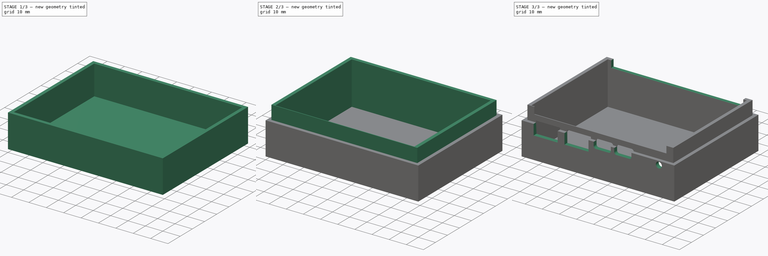
[diagram: build sequence overview — one tinted view per stage of 3, left to right]
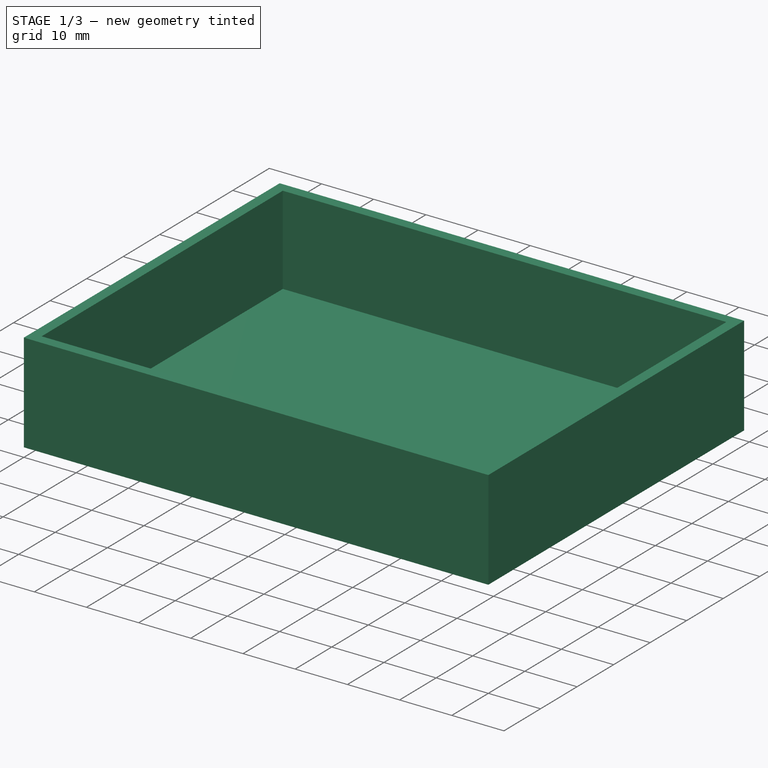
[diagram: stage 1 of 3 — iso view after this stage's code; geometry added in this stage tinted green]
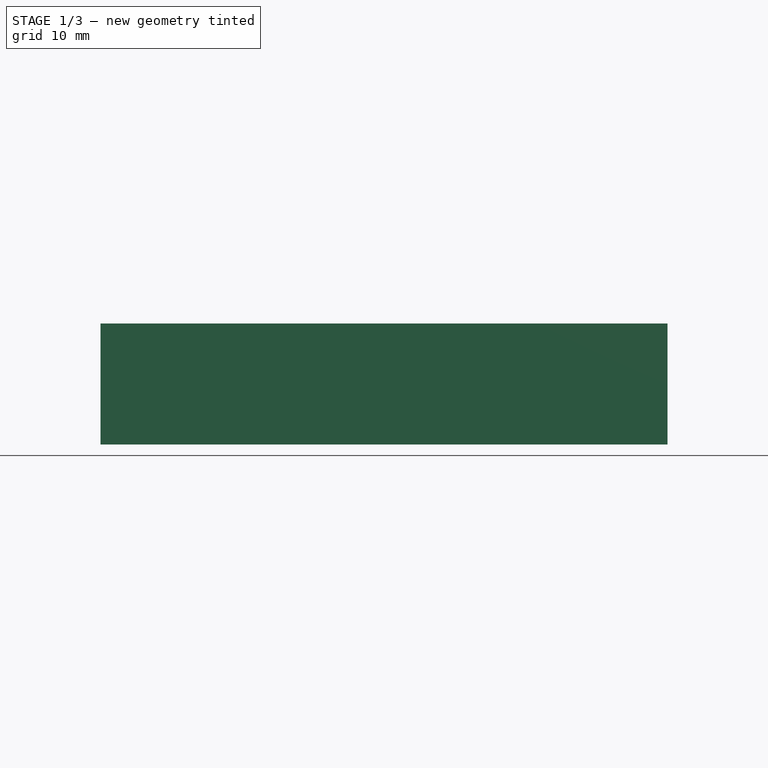
[diagram: stage 1 of 3 — front view after this stage's code; geometry added in this stage tinted green]
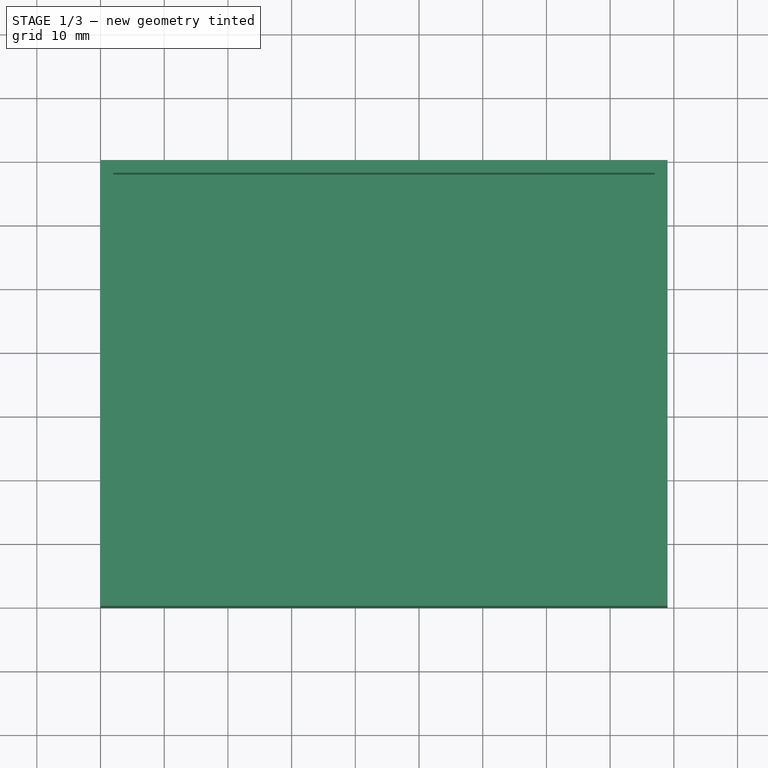
[diagram: stage 1 of 3 — top view after this stage's code; geometry added in this stage tinted green]
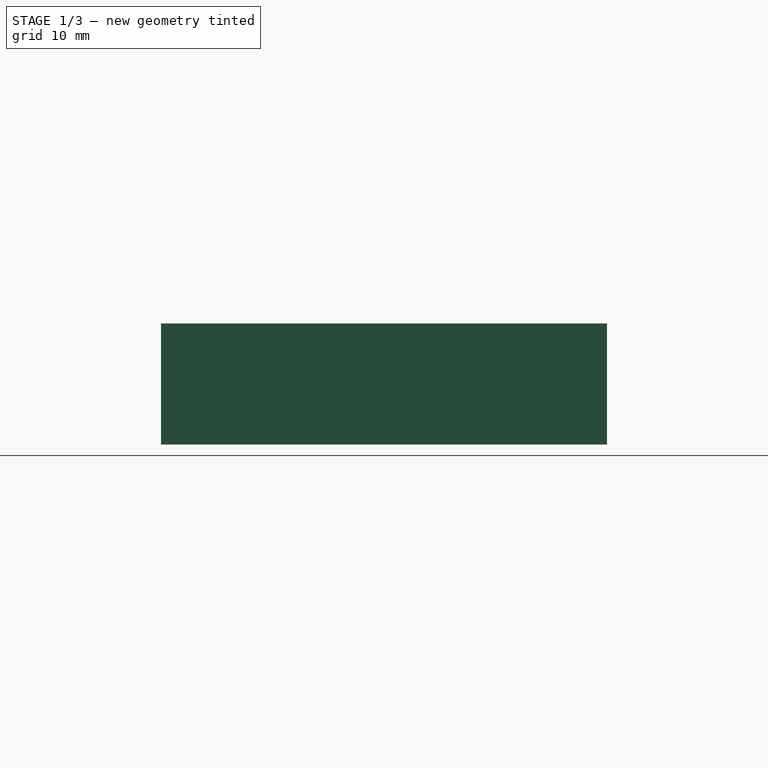
[diagram: stage 1 of 3 — right view after this stage's code; geometry added in this stage tinted green]
FCSTD DOCUMENT  (FreeCAD 1.0RUnknown)
Label: MYZL-YD24-2.3
License: All rights reserved
LicenseURL: https://en.wikipedia.org/wiki/All_rights_reserved
objects: Sketcher::SketchObject×5, PartDesign::Pad×3, PartDesign::Pocket×3, App::VarSet×1, PartDesign::Body×1
note: 29 computed .brp shape members not serialized (recipe doc carries the construction recipe); baked Part::Feature solids carry a one-line shape summary decoded from their .brp

FEATURE [App::VarSet] VarSet
  case_thk = 2
  dist_case_pcb = 4
  extra_height = 5
  height = 19
  inner_height = 8
  length = 85
  thk = 2
  width = 66
  expr: height = 14 mm + extra_height
FEATURE [Sketcher::SketchObject] Sketch
  ArcFitTolerance = 1e-06
  AttachmentSupport = -> [XY_Plane]
  FullyConstrained = true
  MakeInternals = false
  MapMode = 5
  expr: Constraints[8] = <<VarSet>>.length + <<VarSet>>.case_thk * 2
  expr: Constraints[9] = <<VarSet>>.width + <<VarSet>>.case_thk * 2
  sketch-geometry (4):
    g0: LineSegment StartX=0 StartY=0 StartZ=0 EndX=89 EndY=0 EndZ=0
    g1: LineSegment StartX=89 StartY=0 StartZ=0 EndX=89 EndY=70 EndZ=0
    g2: LineSegment StartX=89 StartY=70 StartZ=0 EndX=0 EndY=70 EndZ=0
    g3: LineSegment StartX=0 StartY=70 StartZ=0 EndX=0 EndY=0 EndZ=0
  constraints (12):
    c: Coincident(g0,g1)
    c: Coincident(g1,g2)
    c: Coincident(g2,g3)
    c: Coincident(g3,g0)
    c: Horizontal(g2)
    c: Vertical(g1)
    c: Vertical(g3)
    c: PointOnObject(g0,g-1)
    c: DistanceX(g2,g2) = 89
    c: DistanceY(g3,g3) = 70
    c: PointOnObject(g0,g-2)
    c: Horizontal(g0)
FEATURE [PartDesign::Pad] Pad
  Direction = (0,0,1)
  Length = 2
  Length2 = 10
  Profile = -> Sketch
  ReferenceAxis = -> Sketch [N_Axis]
  Refine = true
  Suppressed = false
  Type = 0
  expr: Length = <<VarSet>>.thk
FEATURE [Sketcher::SketchObject] Sketch001
  ArcFitTolerance = 1e-06
  AttachmentSupport = -> [XY_Plane]
  FullyConstrained = true
  MakeInternals = false
  MapMode = 5
  expr: Constraints[28] = VarSet.case_thk
  expr: Constraints[29] = VarSet.width + 2 * VarSet.case_thk
  expr: Constraints[30] = VarSet.length + 2 * VarSet.case_thk
  expr: Constraints[36] = VarSet.thk
  expr: Constraints[37] = VarSet.thk
  expr: Constraints[38] = VarSet.thk
  expr: Constraints[43] = (VarSet.length + 2 * VarSet.case_thk) / 2
  sketch-geometry (18):
    g0: LineSegment StartX=2 StartY=2 StartZ=0 EndX=87 EndY=2 EndZ=0
    g1: LineSegment StartX=87 StartY=2 StartZ=0 EndX=87 EndY=68 EndZ=0
    g2: LineSegment StartX=87 StartY=68 StartZ=0 EndX=2 EndY=68 EndZ=0
    g3: LineSegment StartX=2 StartY=68 StartZ=0 EndX=2 EndY=2 EndZ=0
    g4: LineSegment StartX=2e-16 StartY=0 StartZ=0 EndX=89 EndY=0 EndZ=0
    g5: LineSegment StartX=89 StartY=0 StartZ=0 EndX=89 EndY=70 EndZ=0
    g6: LineSegment StartX=89 StartY=70 StartZ=0 EndX=0 EndY=70 EndZ=0
    g7: LineSegment StartX=2e-16 StartY=70 StartZ=0 EndX=2e-16 EndY=0 EndZ=0
    g8: LineSegment [constr] StartX=2 StartY=2 StartZ=0 EndX=2e-16 EndY=0 EndZ=0
    g9: LineSegment [constr] StartX=87 StartY=2 StartZ=0 EndX=89 EndY=0 EndZ=0
    g10: LineSegment [constr] StartX=87 StartY=68 StartZ=0 EndX=89 EndY=70 EndZ=0
    g11: LineSegment [constr] StartX=2 StartY=68 StartZ=0 EndX=2e-16 EndY=70 EndZ=0
    g12: LineSegment StartX=4 StartY=66 StartZ=0 EndX=4 EndY=2.4 EndZ=0
    g13: LineSegment StartX=85 StartY=2.4 StartZ=0 EndX=85 EndY=66 EndZ=0
    g14: LineSegment StartX=85 StartY=66 StartZ=0 EndX=4 EndY=66 EndZ=0
    g15: LineSegment StartX=4 StartY=2.4 StartZ=0 EndX=85 EndY=2.4 EndZ=0
    g16: GeomPoint X=44.5 Y=0 Z=0
    g17: GeomPoint X=44.5 Y=0 Z=0
  constraints (46):
    c: Coincident(g0,g1)
    c: Coincident(g1,g2)
    c: Coincident(g2,g3)
    c: Coincident(g3,g0)
    c: Horizontal(g0)
    c: Horizontal(g2)
    c: Vertical(g1)
    c: Vertical(g3)
    c: Coincident(g4,g5)
    c: Coincident(g5,g6)
    c: Coincident(g6,g7)
    c: Coincident(g7,g4)
    c: Horizontal(g4)
    c: Horizontal(g6)
    c: Vertical(g5)
    c: Vertical(g7)
    c: Coincident(g8,g0)
    c: Coincident(g8,g4)
    c: Coincident(g9,g1)
    c: Coincident(g9,g5)
    c: Coincident(g10,g2)
    c: Coincident(g10,g6)
    c: Coincident(g11,g3)
    c: Coincident(g11,g7)
    c: Perpendicular(g8,g9)
    c: Perpendicular(g9,g10)
    c: Perpendicular(g10,g11)
    c: Coincident(g-1,g4)
    c: Distance(g4,g0) = 2
    c: DistanceY(g7,g7) = 70
    c: DistanceX(g6,g6) = 89
    c: Coincident(g13,g14)
    c: Coincident(g14,g12)
    c: Vertical(g12)
    c: Vertical(g13)
    c: Horizontal(g14)
    c: Distance(g2,g14) = 2
    c: Distance(g1,g13) = 2
    c: DistanceX(g2,g12) = 2
    c: Horizontal(g15)
    c: DistanceY(g0,g15) = 0.4
    c: Symmetric(g4,g4,g16)
    c: PointOnObject(g17,g4)
    c: DistanceX(g4,g17) = 44.5
    c: Coincident(g15,g13)
    c: Coincident(g15,g12)
FEATURE [PartDesign::Pad] Pad001
  BaseFeature = -> Pad
  Direction = (0,0,1)
  Length = 19
  Length2 = 10
  Profile = -> Sketch001 [Edge7,Edge6,Edge3,Edge2,Edge1,Edge5,Edge4,Edge8]
  ReferenceAxis = -> Sketch001 [N_Axis]
  Refine = true
  Suppressed = false
  Type = 0
  expr: Length = VarSet.height
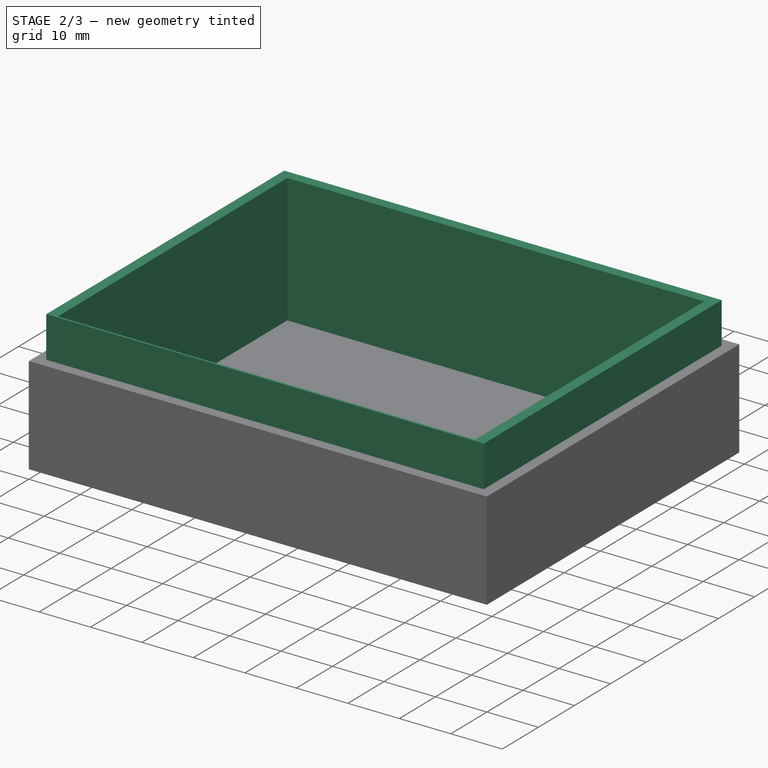
[diagram: stage 2 of 3 — iso view after this stage's code; geometry added in this stage tinted green]
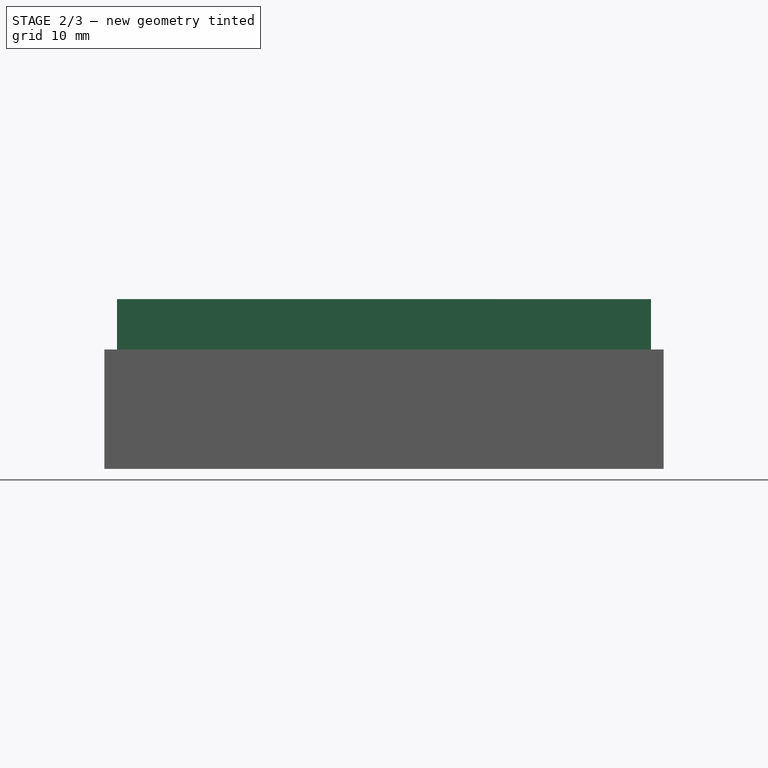
[diagram: stage 2 of 3 — front view after this stage's code; geometry added in this stage tinted green]
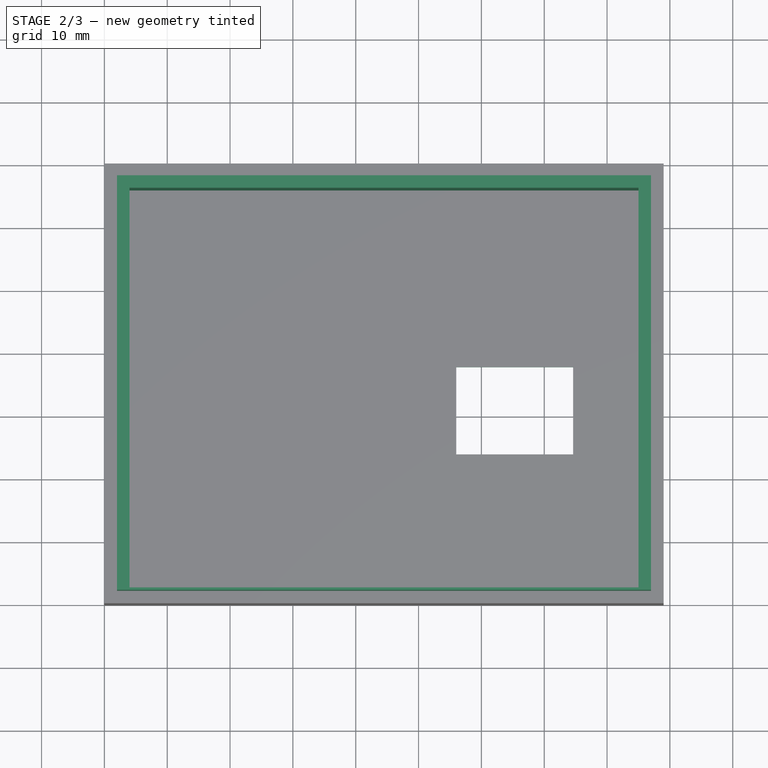
[diagram: stage 2 of 3 — top view after this stage's code; geometry added in this stage tinted green]
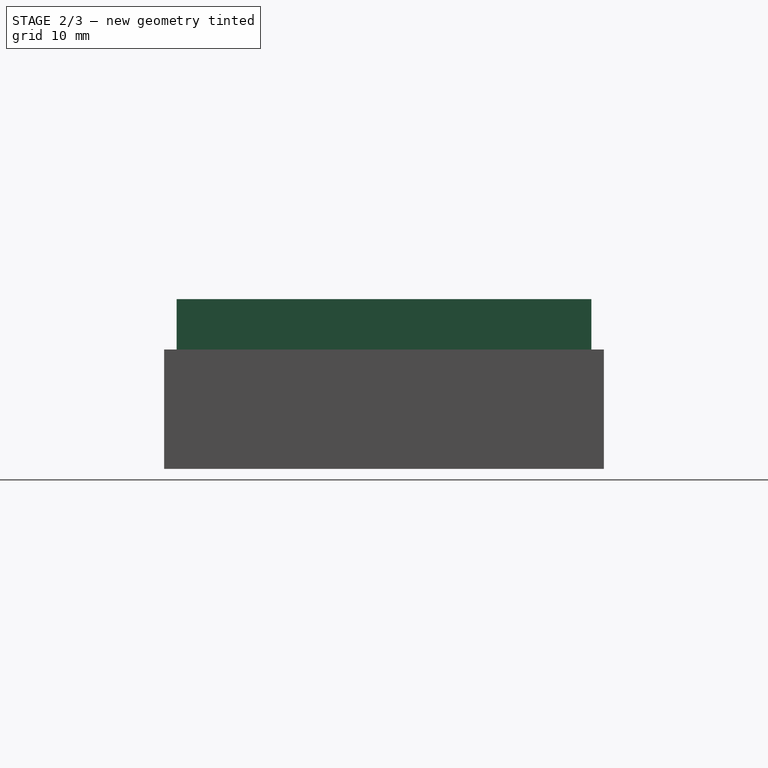
[diagram: stage 2 of 3 — right view after this stage's code; geometry added in this stage tinted green]
FEATURE [PartDesign::Pad] Pad002
  BaseFeature = -> Pad001
  Direction = (0,0,1)
  Length = 27
  Length2 = 10
  Profile = -> Sketch001 [Edge4,Edge1,Edge9,Edge2,Edge11,Edge3,Edge12,Edge10]
  ReferenceAxis = -> Sketch001 [N_Axis]
  Refine = true
  Suppressed = false
  Type = 0
  expr: Length = VarSet.height + VarSet.inner_height
FEATURE [Sketcher::SketchObject] Sketch002
  ArcFitTolerance = 1e-06
  AttachmentSupport = -> [XY_Plane]
  ExternalGeometry = -> [Sketch001,Pad002]
  FullyConstrained = true
  MakeInternals = false
  MapMode = 5
  expr: Constraints[10] = VarSet.case_thk + VarSet.thk + 20 mm
  expr: Constraints[17] = VarSet.dist_case_pcb
  sketch-geometry (5):
    g0: LineSegment StartX=56 StartY=37.9 StartZ=0 EndX=56 EndY=24 EndZ=0
    g1: LineSegment StartX=56 StartY=24 StartZ=0 EndX=74.6 EndY=24 EndZ=0
    g2: LineSegment StartX=74.6 StartY=24 StartZ=0 EndX=74.6 EndY=37.9 EndZ=0
    g3: LineSegment StartX=74.6 StartY=37.9 StartZ=0 EndX=56 EndY=37.9 EndZ=0
    g4: GeomPoint X=-4 Y=0 Z=0
  constraints (19):
    c: Coincident(g0,g1)
    c: Coincident(g1,g2)
    c: Coincident(g2,g3)
    c: Coincident(g3,g0)
    c: Vertical(g0)
    c: Vertical(g2)
    c: Horizontal(g1)
    c: Horizontal(g3)
    c: Distance(g0,g0) = 13.9
    c: DistanceX(g3,g3) = 18.6
    c: Distance(g0,g-1) = 24
    c: DistanceX(g1,g-3) = 12.4
    c: DistanceX(g1,g-4) = 10.4
    c: DistanceX(g-5,g-4) = 81
    c: DistanceX(g-6,g-3) = 85
    c: DistanceX(g-1,g-9) = 89
    c: PointOnObject(g4,g-8)
    c: Distance(g4,g-1) = 4
    c: DistanceX(g4,g0) = 60
FEATURE [PartDesign::Pocket] Pocket
  BaseFeature = -> Pad002
  Direction = (0,0,-1)
  Length = 5
  Length2 = 5
  Profile = -> Sketch002
  ReferenceAxis = -> Sketch002 [N_Axis]
  Refine = true
  Reversed = true
  Suppressed = false
  Type = 1
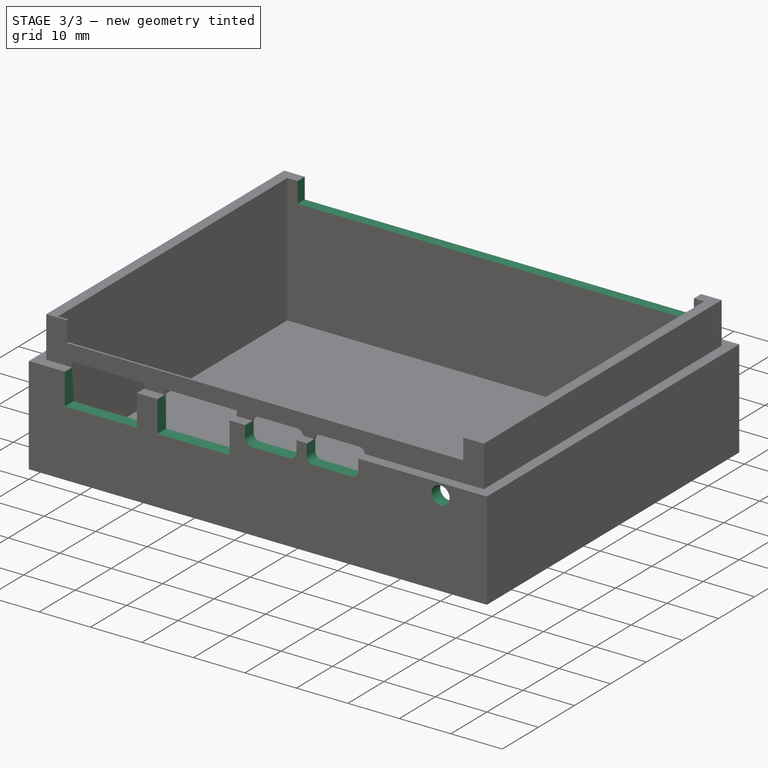
[diagram: stage 3 of 3 — iso view after this stage's code; geometry added in this stage tinted green]
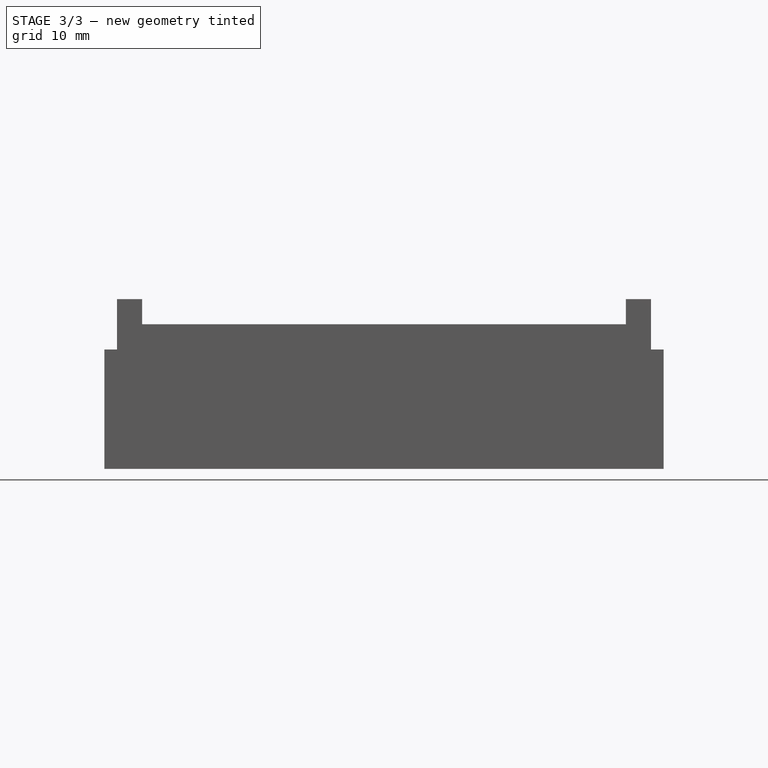
[diagram: stage 3 of 3 — front view after this stage's code; geometry added in this stage tinted green]
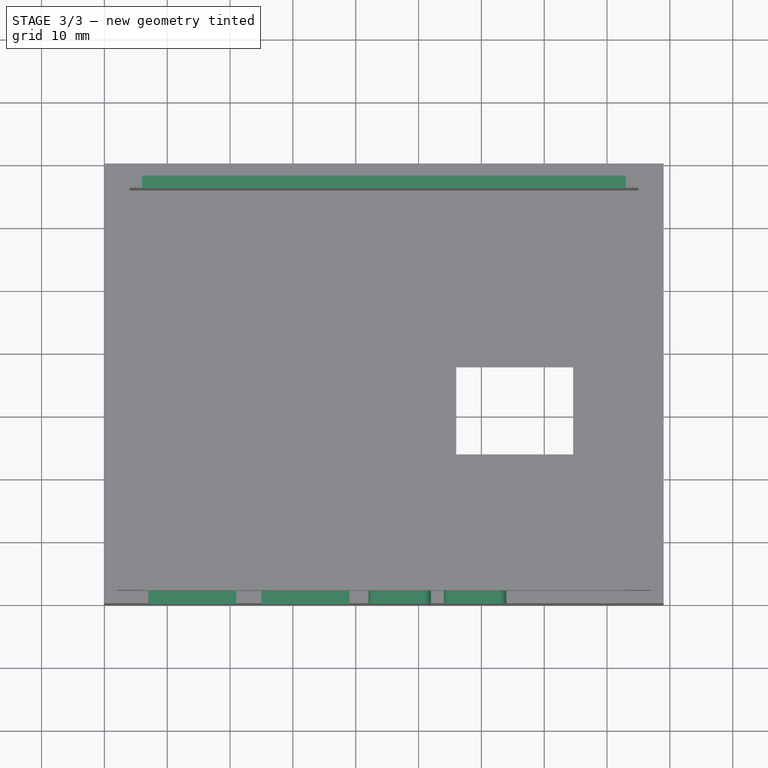
[diagram: stage 3 of 3 — top view after this stage's code; geometry added in this stage tinted green]
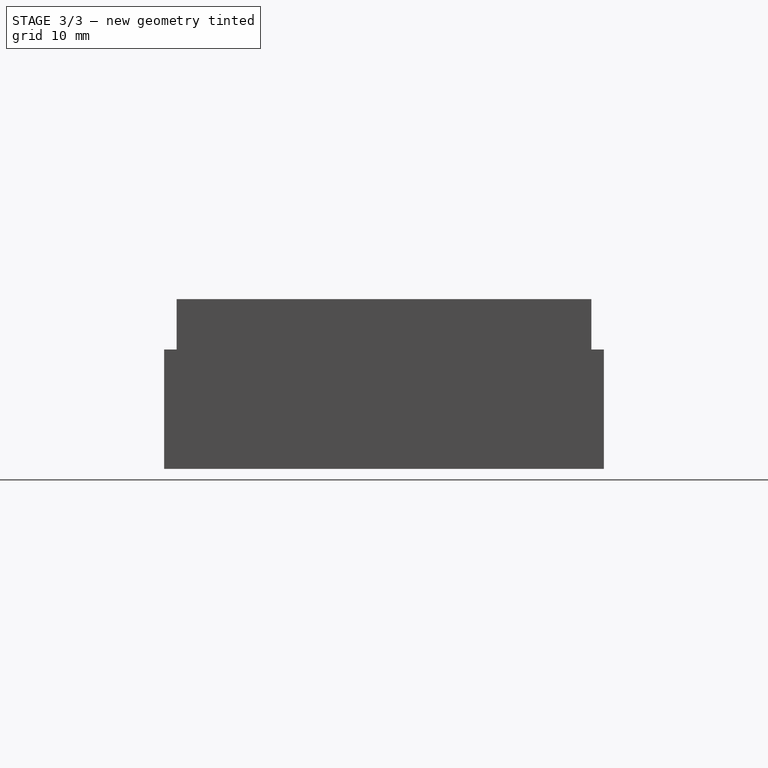
[diagram: stage 3 of 3 — right view after this stage's code; geometry added in this stage tinted green]
FEATURE [Sketcher::SketchObject] Sketch003
  ArcFitTolerance = 1e-06
  AttachmentSupport = -> [XZ_Plane]
  FullyConstrained = true
  MakeInternals = false
  MapMode = 5
  Placement = pos=(0,0,0) rot=(1,0,0;1.5708rad)
  expr: Constraints[64] = VarSet.height
  expr: Constraints[78] = VarSet.dist_case_pcb
  sketch-geometry (34):
    g0: LineSegment StartX=7 StartY=12.9 StartZ=0 EndX=21 EndY=12.9 EndZ=0
    g1: LineSegment StartX=21 StartY=12.9 StartZ=0 EndX=21 EndY=20 EndZ=0
    g2: LineSegment StartX=21 StartY=20 StartZ=0 EndX=7 EndY=20 EndZ=0
    g3: LineSegment StartX=7 StartY=20 StartZ=0 EndX=7 EndY=12.9 EndZ=0
    g4: LineSegment StartX=25 StartY=12.9 StartZ=0 EndX=39 EndY=12.9 EndZ=0
    g5: LineSegment StartX=39 StartY=12.9 StartZ=0 EndX=39 EndY=20 EndZ=0
    g6: LineSegment StartX=39 StartY=20 StartZ=0 EndX=25 EndY=20 EndZ=0
    g7: LineSegment StartX=25 StartY=20 StartZ=0 EndX=25 EndY=12.9 EndZ=0
    g8: LineSegment StartX=42 StartY=18.7 StartZ=0 EndX=42 EndY=16.8 EndZ=0
    g9: LineSegment StartX=43.3 StartY=15.5 StartZ=0 EndX=50.7 EndY=15.5 EndZ=0
    g10: LineSegment StartX=52 StartY=16.8 StartZ=0 EndX=52 EndY=18.7 EndZ=0
    g11: LineSegment StartX=50.7 StartY=20 StartZ=0 EndX=43.3 EndY=20 EndZ=0
    g12: ArcOfCircle CenterX=43.3 CenterY=18.7 CenterZ=0 NormalX=0 NormalY=0 NormalZ=1 AngleXU=0 Radius=1.3 StartAngle=1.5708 EndAngle=3.14159
    g13: ArcOfCircle CenterX=43.3 CenterY=16.8 CenterZ=0 NormalX=0 NormalY=0 NormalZ=1 AngleXU=0 Radius=1.3 StartAngle=3.14159 EndAngle=4.71239
    g14: ArcOfCircle CenterX=50.7 CenterY=16.8 CenterZ=0 NormalX=0 NormalY=0 NormalZ=1 AngleXU=0 Radius=1.3 StartAngle=4.71239 EndAngle=6.28319
    g15: ArcOfCircle CenterX=50.7 CenterY=18.7 CenterZ=0 NormalX=0 NormalY=0 NormalZ=1 AngleXU=0 Radius=1.3 StartAngle=0 EndAngle=1.5708
    g16: GeomPoint [constr] X=42 Y=20 Z=0
    g17: GeomPoint [constr] X=52 Y=15.5 Z=0
    g18: LineSegment StartX=55.3 StartY=15.5 StartZ=0 EndX=62.7 EndY=15.5 EndZ=0
    g19: LineSegment StartX=64 StartY=16.8 StartZ=0 EndX=64 EndY=18.7 EndZ=0
    g20: LineSegment StartX=62.7 StartY=20 StartZ=0 EndX=55.3 EndY=20 EndZ=0
    g21: LineSegment StartX=54 StartY=18.7 StartZ=0 EndX=54 EndY=16.8 EndZ=0
    g22: ArcOfCircle CenterX=55.3 CenterY=16.8 CenterZ=0 NormalX=0 NormalY=0 NormalZ=1 AngleXU=0 Radius=1.3 StartAngle=3.14159 EndAngle=4.71239
    g23: ArcOfCircle CenterX=62.7 CenterY=16.8 CenterZ=0 NormalX=0 NormalY=0 NormalZ=1 AngleXU=0 Radius=1.3 StartAngle=4.71239 EndAngle=6.28319
    g24: ArcOfCircle CenterX=62.7 CenterY=18.7 CenterZ=0 NormalX=0 NormalY=0 NormalZ=1 AngleXU=0 Radius=1.3 StartAngle=0 EndAngle=1.5708
    g25: ArcOfCircle CenterX=55.3 CenterY=18.7 CenterZ=0 NormalX=0 NormalY=0 NormalZ=1 AngleXU=0 Radius=1.3 StartAngle=1.5708 EndAngle=3.14159
    g26: GeomPoint [constr] X=54 Y=15.5 Z=0
    g27: GeomPoint [constr] X=64 Y=20 Z=0
    g28: GeomPoint X=0 Y=19 Z=0
    g29: Circle CenterX=80 CenterY=16.8 CenterZ=0 NormalX=0 NormalY=0 NormalZ=1 AngleXU=0 Radius=1.75
    g30: GeomPoint X=80 Y=18.55 Z=0
    g31: GeomPoint X=78.25 Y=16.8 Z=0
    g32: GeomPoint X=81.75 Y=16.8 Z=0
    g33: GeomPoint X=4 Y=0 Z=0
  constraints (90):
    c: Coincident(g0,g1)
    c: Coincident(g1,g2)
    c: Coincident(g2,g3)
    c: Coincident(g3,g0)
    c: Horizontal(g0)
    c: Horizontal(g2)
    c: Vertical(g1)
    c: Vertical(g3)
    c: Coincident(g4,g5)
    c: Coincident(g5,g6)
    c: Coincident(g6,g7)
    c: Coincident(g7,g4)
    c: Horizontal(g4)
    c: Horizontal(g6)
    c: Vertical(g5)
    c: Vertical(g7)
    c: DistanceX(g2,g2) = 14
    c: Equal(g2,g6)
    c: Equal(g7,g1)
    c: Horizontal(g0,g4)
    c: Tangent(g8,g12) = -1.5708
    c: Tangent(g8,g13) = -1.5708
    c: Tangent(g9,g13) = -1.5708
    c: Tangent(g9,g14) = -1.5708
    c: Tangent(g10,g14) = -1.5708
    c: Tangent(g10,g15) = -1.5708
    c: Tangent(g11,g15) = -1.5708
    c: Tangent(g11,g12) = -1.5708
    c: Vertical(g8)
    c: Vertical(g10)
    c: Horizontal(g9)
    c: Horizontal(g11)
    c: Equal(g12,g13)
    c: Equal(g13,g14)
    c: Equal(g14,g15)
    c: PointOnObject(g16,g8)
    c: PointOnObject(g16,g11)
    c: PointOnObject(g17,g9)
    c: PointOnObject(g17,g10)
    c: Radius(g13) = 1.3
    c: DistanceX(g8,g10) = 10
    c: Horizontal(g11,g6)
    c: Tangent(g18,g22) = -1.5708
    c: Tangent(g18,g23) = -1.5708
    c: Tangent(g19,g23) = -1.5708
    c: Tangent(g19,g24) = -1.5708
    c: Tangent(g20,g24) = -1.5708
    c: Tangent(g20,g25) = -1.5708
    c: Tangent(g21,g25) = -1.5708
    c: Tangent(g21,g22) = -1.5708
    c: Horizontal(g18)
    c: Horizontal(g20)
    c: Vertical(g19)
    c: Vertical(g21)
    c: Equal(g22,g23)
    c: Equal(g23,g24)
    c: Equal(g24,g25)
    c: PointOnObject(g26,g18)
    c: PointOnObject(g26,g21)
    c: PointOnObject(g27,g19)
    c: PointOnObject(g27,g20)
    c: Equal(g23,g13)
    c: Horizontal(g20,g1)
    c: Equal(g9,g18)
    c: DistanceY(g-1,g28) = 19
    c: PointOnObject(g28,g-2)
    c: DistanceY(g0,g28) = 6.1
    c: Horizontal(g18,g9)
    c: DistanceY(g9,g28) = 3.5
    c: Diameter(g29) = 3.5
    c: PointOnObject(g30,g29)
    c: Vertical(g30,g29)
    c: PointOnObject(g31,g29)
    c: PointOnObject(g32,g29)
    c: Horizontal(g31,g32)
    c: Horizontal(g31,g29)
    c: DistanceY(g28,g2) = 1
    c: PointOnObject(g33,g-1)
    c: DistanceX(g-1,g33) = 4
    c: DistanceX(g33,g0) = 3
    c: DistanceX(g33,g4) = 21
    c: DistanceX(g33,g4) = 35
    c: DistanceX(g33,g8) = 38
    c: DistanceX(g33,g10) = 48
    c: DistanceX(g33,g21) = 50
    c: DistanceX(g33,g19) = 60
    c: DistanceX(g33,g29) = 76
    c: DistanceY(g29,g28) = 2.2
    c: DistanceX(g33,g31) = 74.25
    c: DistanceX(g33,g32) = 77.75
FEATURE [PartDesign::Pocket] Pocket001
  BaseFeature = -> Pocket
  Direction = (0,1,-2e-16)
  Length = 10
  Length2 = 5
  Profile = -> Sketch003
  ReferenceAxis = -> Sketch003 [N_Axis]
  Refine = true
  Suppressed = false
  Type = 0
FEATURE [Sketcher::SketchObject] Sketch004
  ArcFitTolerance = 1e-06
  AttachmentSupport = -> [XZ_Plane]
  ExternalGeometry = -> [Sketch001]
  FullyConstrained = true
  MakeInternals = false
  MapMode = 5
  Placement = pos=(0,0,0) rot=(1,0,0;1.5708rad)
  expr: Constraints[11] = VarSet.inner_height + 1 mm
  expr: Constraints[9] = VarSet.height + 4 mm
  sketch-geometry (4):
    g0: LineSegment StartX=6 StartY=32 StartZ=0 EndX=6 EndY=23 EndZ=0
    g1: LineSegment StartX=6 StartY=23 StartZ=0 EndX=83 EndY=23 EndZ=0
    g2: LineSegment StartX=83 StartY=23 StartZ=0 EndX=83 EndY=32 EndZ=0
    g3: LineSegment StartX=83 StartY=32 StartZ=0 EndX=6 EndY=32 EndZ=0
  constraints (12):
    c: Coincident(g0,g1)
    c: Coincident(g1,g2)
    c: Coincident(g2,g3)
    c: Coincident(g3,g0)
    c: Vertical(g0)
    c: Vertical(g2)
    c: Horizontal(g1)
    c: Horizontal(g3)
    c: Distance(g0,g-2) = 6
    c: Distance(g0,g-1) = 23
    c: DistanceX(g1,g-3) = 6
    c: Distance(g2,g2) = 9
FEATURE [PartDesign::Pocket] Pocket002
  BaseFeature = -> Pocket001
  Direction = (0,1,-2e-16)
  Length = 5
  Length2 = 5
  Profile = -> Sketch004
  ReferenceAxis = -> Sketch004 [N_Axis]
  Refine = true
  Suppressed = false
  Type = 1
FEATURE [PartDesign::Body] Body  label="lid"
  AllowCompound = false
  Group = -> [Sketch,Pad,Sketch001,Sketch002,Pad001,Pad002,Pocket,Sketch003,Pocket001,Sketch004,Pocket002]
  Origin = -> Origin
  Tip = -> Pocket002
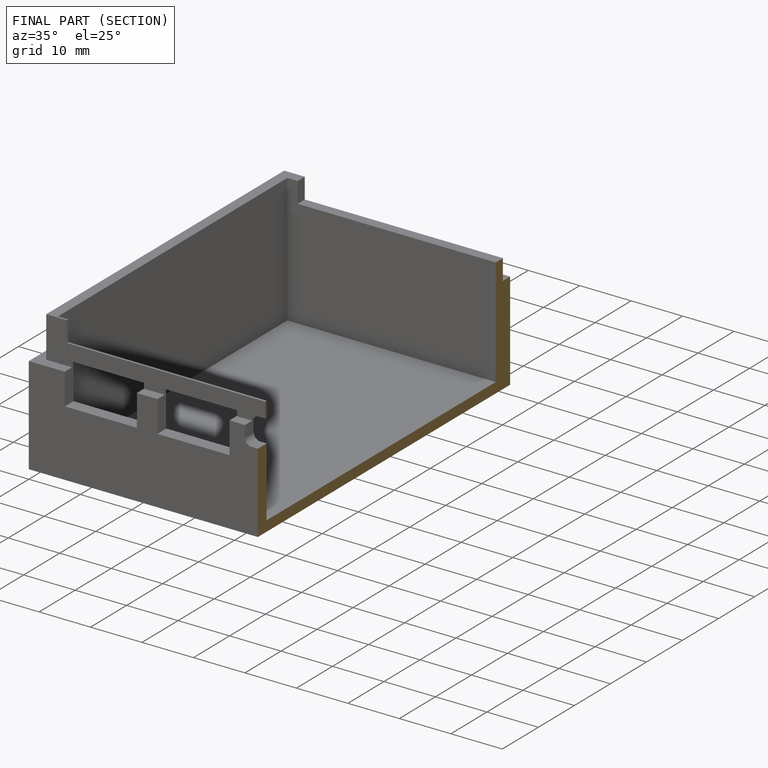
[diagram: finished part — half-section view (interior)]
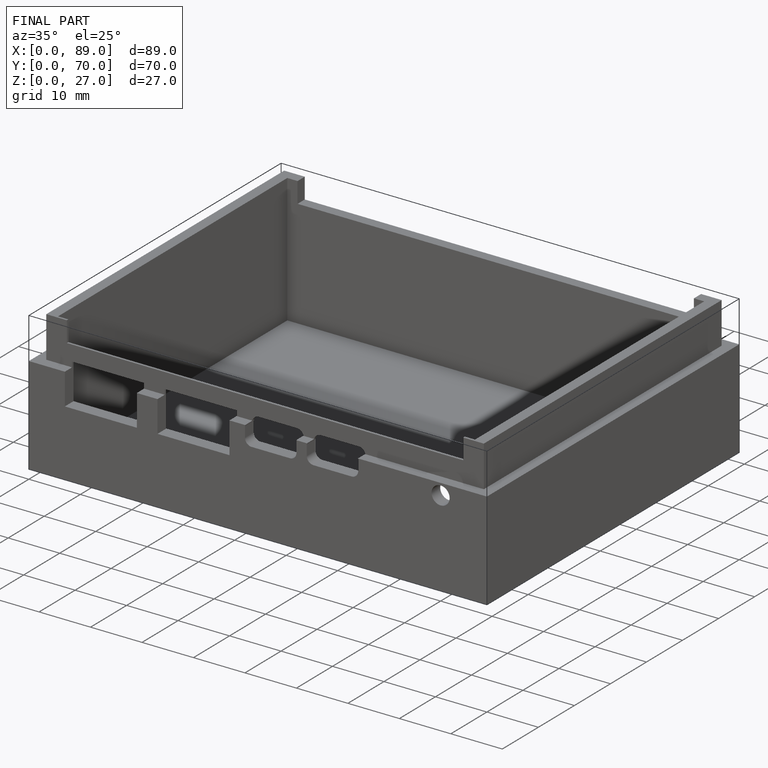
[diagram: finished part — iso view with bounding-box wireframe]
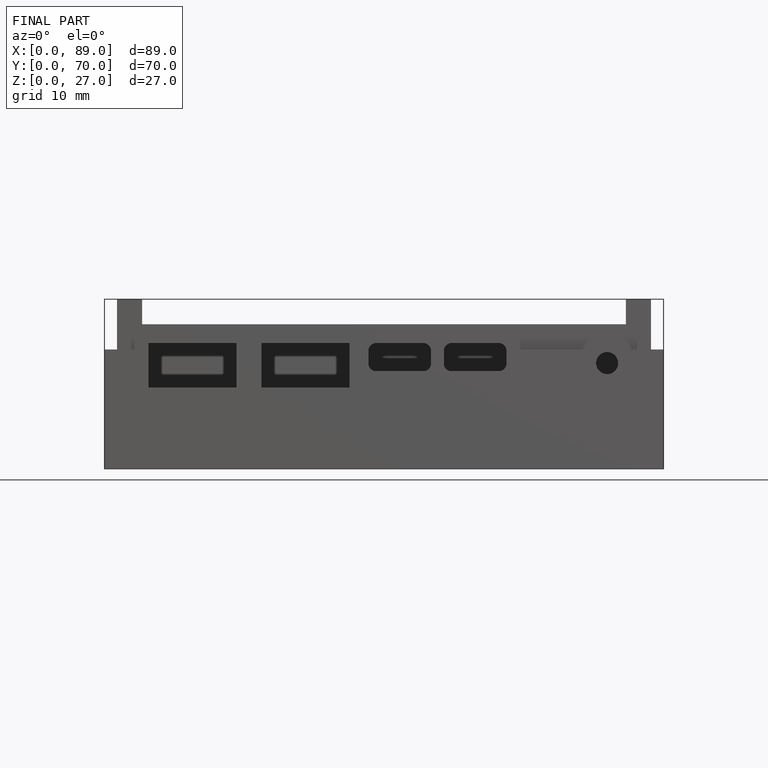
[diagram: finished part — front view with bounding-box wireframe]
